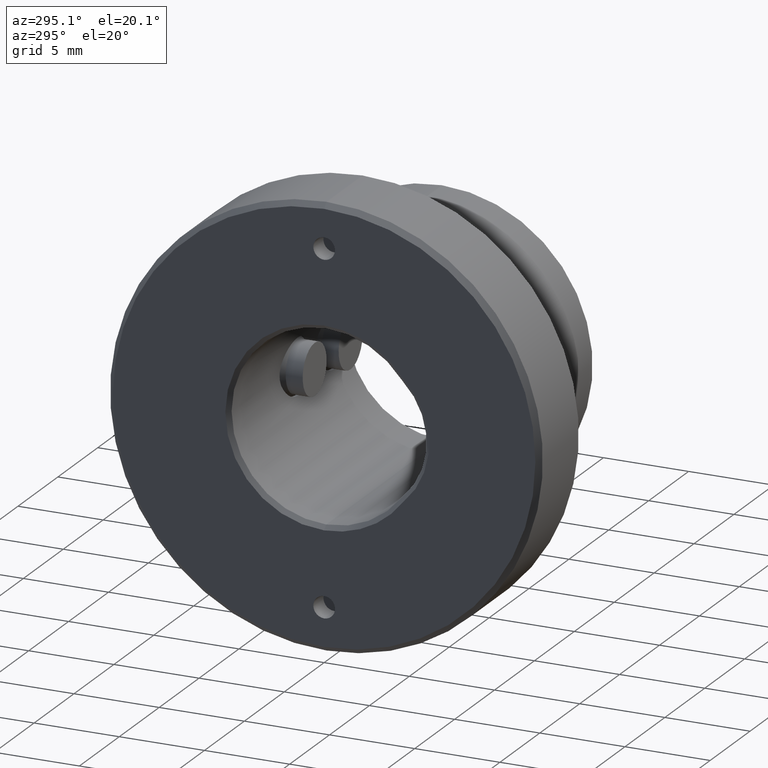
[diagram: clean part render]
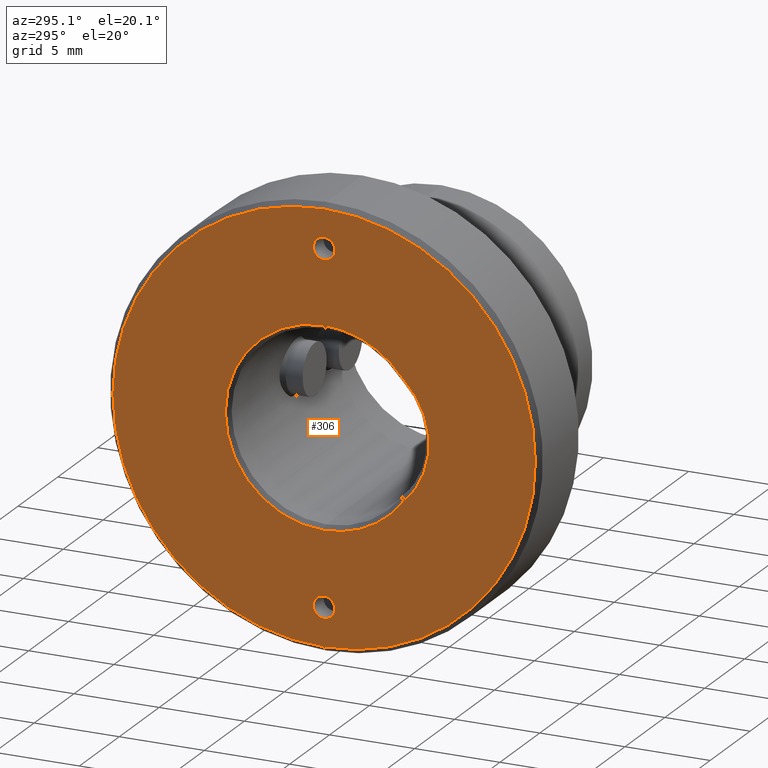
[diagram: same view with one face highlighted and labeled with its STEP entity id]
A machine part, auxiliary view. The second image highlights one B-rep face of the part: STEP entity #306.
In plain terms, the highlighted planar face has unit normal (1, 0, 0).
Its self-contained STEP definition (entity closure, byte-faithful):
#26 = DIRECTION ( 'NONE',  ( -1.000000000000000000, 0.000000000000000000, 0.000000000000000000 ) ) ;
#54 = DIRECTION ( 'NONE',  ( 0.000000000000000000, 0.000000000000000000, -1.000000000000000000 ) ) ;
#177 = CARTESIAN_POINT ( 'NONE',  ( 0.000000000000000000, -1.399999999999999911, 1.714505518806294145E-16 ) ) ;
#196 = VERTEX_POINT ( 'NONE', #1545 ) ;
#306 = ADVANCED_FACE ( 'NONE', ( #1455, #3006, #3779, #2221 ), #1861, .F. ) ;
#369 = DIRECTION ( 'NONE',  ( -1.000000000000000000, 0.000000000000000000, 0.000000000000000000 ) ) ;
#416 = CARTESIAN_POINT ( 'NONE',  ( 0.000000000000000000, -1.243016501134563686E-15, 10.15000000000000036 ) ) ;
#467 = DIRECTION ( 'NONE',  ( 1.000000000000000000, 0.000000000000000000, 0.000000000000000000 ) ) ;
#470 = DIRECTION ( 'NONE',  ( 0.000000000000000000, 0.000000000000000000, 1.000000000000000000 ) ) ;
#516 = EDGE_CURVE ( 'NONE', #3529, #3317, #4816, .T. ) ;
#520 = VERTEX_POINT ( 'NONE', #2725 ) ;
#683 = CIRCLE ( 'NONE', #3925, 5.800000000000006928 ) ;
#703 = DIRECTION ( 'NONE',  ( 0.000000000000000000, 0.000000000000000000, -1.000000000000000000 ) ) ;
#743 = DIRECTION ( 'NONE',  ( -1.000000000000000000, 0.000000000000000000, 0.000000000000000000 ) ) ;
#758 = EDGE_CURVE ( 'NONE', #2574, #3106, #3602, .T. ) ;
#801 = CIRCLE ( 'NONE', #4369, 5.800000000000006928 ) ;
#821 = CARTESIAN_POINT ( 'NONE',  ( 0.000000000000000000, 7.102951435054656540E-16, -5.800000000000006928 ) ) ;
#836 = AXIS2_PLACEMENT_3D ( 'NONE', #4000, #3257, #470 ) ;
#907 = EDGE_CURVE ( 'NONE', #196, #4582, #2699, .T. ) ;
#925 = DIRECTION ( 'NONE',  ( 0.000000000000000000, 0.000000000000000000, -1.000000000000000000 ) ) ;
#1054 = AXIS2_PLACEMENT_3D ( 'NONE', #1195, #369, #2739 ) ;
#1085 = CIRCLE ( 'NONE', #2384, 0.6350000000000001199 ) ;
#1129 = CARTESIAN_POINT ( 'NONE',  ( 0.000000000000000000, -1.243016501134563686E-15, 10.78500000000000192 ) ) ;
#1195 = CARTESIAN_POINT ( 'NONE',  ( -0.000000000000000000, -1.243016501134563686E-15, -10.15000000000000036 ) ) ;
#1455 = FACE_BOUND ( 'NONE', #1856, .T. ) ;
#1545 = CARTESIAN_POINT ( 'NONE',  ( 0.000000000000000000, 0.000000000000000000, -12.40000000000000213 ) ) ;
#1723 = AXIS2_PLACEMENT_3D ( 'NONE', #2799, #2447, #2824 ) ;
#1727 = VERTEX_POINT ( 'NONE', #2014 ) ;
#1741 = EDGE_CURVE ( 'NONE', #4582, #196, #2645, .T. ) ;
#1851 = ORIENTED_EDGE ( 'NONE', *, *, #1741, .T. ) ;
#1856 = EDGE_LOOP ( 'NONE', ( #3695, #3800 ) ) ;
#1861 = PLANE ( 'NONE',  #4569 ) ;
#1895 = DIRECTION ( 'NONE',  ( -1.000000000000000000, -0.000000000000000000, -0.000000000000000000 ) ) ;
#1898 = CARTESIAN_POINT ( 'NONE',  ( 0.000000000000000000, -1.165251429388706647E-15, -10.78500000000000192 ) ) ;
#2014 = CARTESIAN_POINT ( 'NONE',  ( 0.000000000000000000, -1.243016501134563686E-15, -9.515000000000000568 ) ) ;
#2028 = CARTESIAN_POINT ( 'NONE',  ( 0.000000000000000000, -1.165251429388706647E-15, 9.515000000000000568 ) ) ;
#2066 = DIRECTION ( 'NONE',  ( 1.000000000000000000, 0.000000000000000000, 0.000000000000000000 ) ) ;
#2221 = FACE_OUTER_BOUND ( 'NONE', #3950, .T. ) ;
#2269 = CARTESIAN_POINT ( 'NONE',  ( 0.000000000000000000, 0.000000000000000000, 0.000000000000000000 ) ) ;
#2300 = CIRCLE ( 'NONE', #1723, 5.800000000000006928 ) ;
#2315 = ORIENTED_EDGE ( 'NONE', *, *, #3025, .F. ) ;
#2335 = EDGE_CURVE ( 'NONE', #4659, #1727, #3081, .T. ) ;
#2341 = ORIENTED_EDGE ( 'NONE', *, *, #2335, .F. ) ;
#2384 = AXIS2_PLACEMENT_3D ( 'NONE', #416, #743, #3024 ) ;
#2439 = DIRECTION ( 'NONE',  ( 0.000000000000000000, 0.000000000000000000, -1.000000000000000000 ) ) ;
#2447 = DIRECTION ( 'NONE',  ( 1.000000000000000000, 0.000000000000000000, 0.000000000000000000 ) ) ;
#2574 = VERTEX_POINT ( 'NONE', #4937 ) ;
#2625 = ORIENTED_EDGE ( 'NONE', *, *, #3804, .T. ) ;
#2645 = CIRCLE ( 'NONE', #4352, 12.40000000000000213 ) ;
#2653 = DIRECTION ( 'NONE',  ( 1.000000000000000000, 0.000000000000000000, 0.000000000000000000 ) ) ;
#2699 = CIRCLE ( 'NONE', #3356, 12.40000000000000213 ) ;
#2725 = CARTESIAN_POINT ( 'NONE',  ( 0.000000000000000000, 0.000000000000000000, 5.800000000000006928 ) ) ;
#2739 = DIRECTION ( 'NONE',  ( 0.000000000000000000, 0.000000000000000000, 1.000000000000000000 ) ) ;
#2799 = CARTESIAN_POINT ( 'NONE',  ( 0.000000000000000000, 0.000000000000000000, 0.000000000000000000 ) ) ;
#2813 = DIRECTION ( 'NONE',  ( 0.000000000000000000, 0.000000000000000000, -1.000000000000000000 ) ) ;
#2824 = DIRECTION ( 'NONE',  ( 0.000000000000000000, 0.000000000000000000, -1.000000000000000000 ) ) ;
#2845 = ORIENTED_EDGE ( 'NONE', *, *, #3374, .T. ) ;
#2898 = EDGE_LOOP ( 'NONE', ( #3595, #2845, #2625, #3883 ) ) ;
#2940 = AXIS2_PLACEMENT_3D ( 'NONE', #4279, #26, #54 ) ;
#2954 = EDGE_LOOP ( 'NONE', ( #2315, #2341 ) ) ;
#3006 = FACE_BOUND ( 'NONE', #2954, .T. ) ;
#3024 = DIRECTION ( 'NONE',  ( 0.000000000000000000, 0.000000000000000000, -1.000000000000000000 ) ) ;
#3025 = EDGE_CURVE ( 'NONE', #1727, #4659, #3847, .T. ) ;
#3081 = CIRCLE ( 'NONE', #1054, 0.6350000000000001199 ) ;
#3106 = VERTEX_POINT ( 'NONE', #3487 ) ;
#3112 = CARTESIAN_POINT ( 'NONE',  ( 0.000000000000000000, 0.000000000000000000, 0.000000000000000000 ) ) ;
#3199 = CARTESIAN_POINT ( 'NONE',  ( 0.000000000000000000, 0.000000000000000000, 0.000000000000000000 ) ) ;
#3257 = DIRECTION ( 'NONE',  ( -1.000000000000000000, 0.000000000000000000, 0.000000000000000000 ) ) ;
#3317 = VERTEX_POINT ( 'NONE', #2028 ) ;
#3356 = AXIS2_PLACEMENT_3D ( 'NONE', #3506, #1895, #3786 ) ;
#3374 = EDGE_CURVE ( 'NONE', #3723, #520, #683, .T. ) ;
#3487 = CARTESIAN_POINT ( 'NONE',  ( 0.000000000000000000, -4.656250000000006217, -3.458227282510508704 ) ) ;
#3506 = CARTESIAN_POINT ( 'NONE',  ( 0.000000000000000000, 0.000000000000000000, 0.000000000000000000 ) ) ;
#3527 = DIRECTION ( 'NONE',  ( -1.000000000000000000, -0.000000000000000000, -0.000000000000000000 ) ) ;
#3529 = VERTEX_POINT ( 'NONE', #1129 ) ;
#3595 = ORIENTED_EDGE ( 'NONE', *, *, #4825, .T. ) ;
#3602 = CIRCLE ( 'NONE', #4409, 4.750000000000006217 ) ;
#3695 = ORIENTED_EDGE ( 'NONE', *, *, #516, .F. ) ;
#3723 = VERTEX_POINT ( 'NONE', #821 ) ;
#3779 = FACE_BOUND ( 'NONE', #2898, .T. ) ;
#3786 = DIRECTION ( 'NONE',  ( 0.000000000000000000, 0.000000000000000000, -1.000000000000000000 ) ) ;
#3800 = ORIENTED_EDGE ( 'NONE', *, *, #4051, .F. ) ;
#3804 = EDGE_CURVE ( 'NONE', #520, #2574, #2300, .T. ) ;
#3847 = CIRCLE ( 'NONE', #836, 0.6350000000000001199 ) ;
#3883 = ORIENTED_EDGE ( 'NONE', *, *, #758, .T. ) ;
#3925 = AXIS2_PLACEMENT_3D ( 'NONE', #3948, #467, #2439 ) ;
#3948 = CARTESIAN_POINT ( 'NONE',  ( 0.000000000000000000, 0.000000000000000000, 0.000000000000000000 ) ) ;
#3950 = EDGE_LOOP ( 'NONE', ( #4328, #1851 ) ) ;
#4000 = CARTESIAN_POINT ( 'NONE',  ( -0.000000000000000000, -1.243016501134563686E-15, -10.15000000000000036 ) ) ;
#4051 = EDGE_CURVE ( 'NONE', #3317, #3529, #1085, .T. ) ;
#4279 = CARTESIAN_POINT ( 'NONE',  ( 0.000000000000000000, -1.243016501134563686E-15, 10.15000000000000036 ) ) ;
#4328 = ORIENTED_EDGE ( 'NONE', *, *, #907, .T. ) ;
#4352 = AXIS2_PLACEMENT_3D ( 'NONE', #3112, #3527, #4357 ) ;
#4357 = DIRECTION ( 'NONE',  ( 0.000000000000000000, 0.000000000000000000, -1.000000000000000000 ) ) ;
#4369 = AXIS2_PLACEMENT_3D ( 'NONE', #3199, #4440, #2813 ) ;
#4409 = AXIS2_PLACEMENT_3D ( 'NONE', #177, #2066, #925 ) ;
#4440 = DIRECTION ( 'NONE',  ( 1.000000000000000000, 0.000000000000000000, 0.000000000000000000 ) ) ;
#4569 = AXIS2_PLACEMENT_3D ( 'NONE', #2269, #2653, #703 ) ;
#4582 = VERTEX_POINT ( 'NONE', #4596 ) ;
#4596 = CARTESIAN_POINT ( 'NONE',  ( 0.000000000000000000, 1.536931732929928397E-15, 12.40000000000000213 ) ) ;
#4659 = VERTEX_POINT ( 'NONE', #1898 ) ;
#4816 = CIRCLE ( 'NONE', #2940, 0.6350000000000001199 ) ;
#4825 = EDGE_CURVE ( 'NONE', #3106, #3723, #801, .T. ) ;
#4937 = CARTESIAN_POINT ( 'NONE',  ( 0.000000000000000000, -4.656250000000008882, 3.458227282510506040 ) ) ;